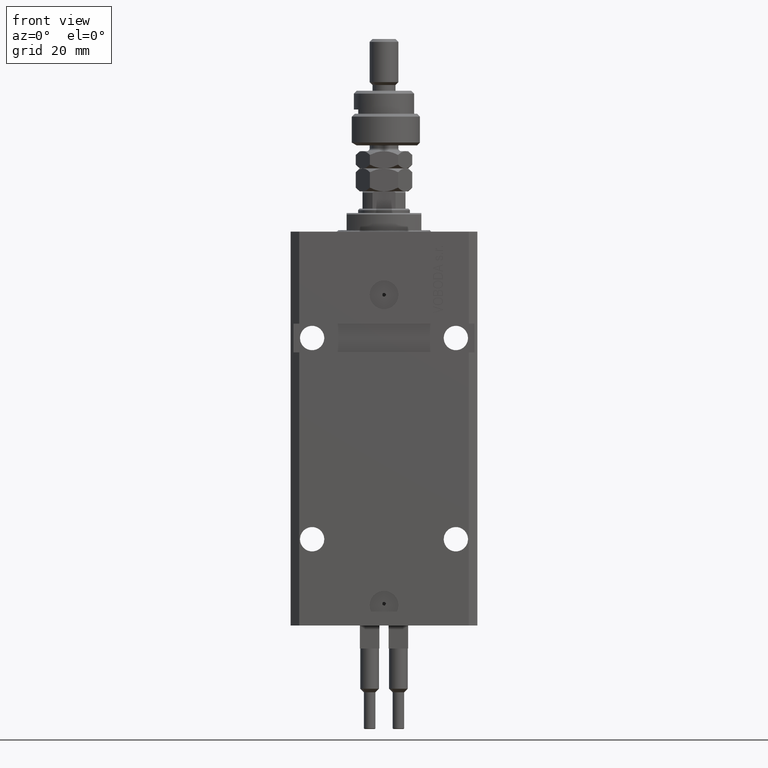
[diagram: clean part render]
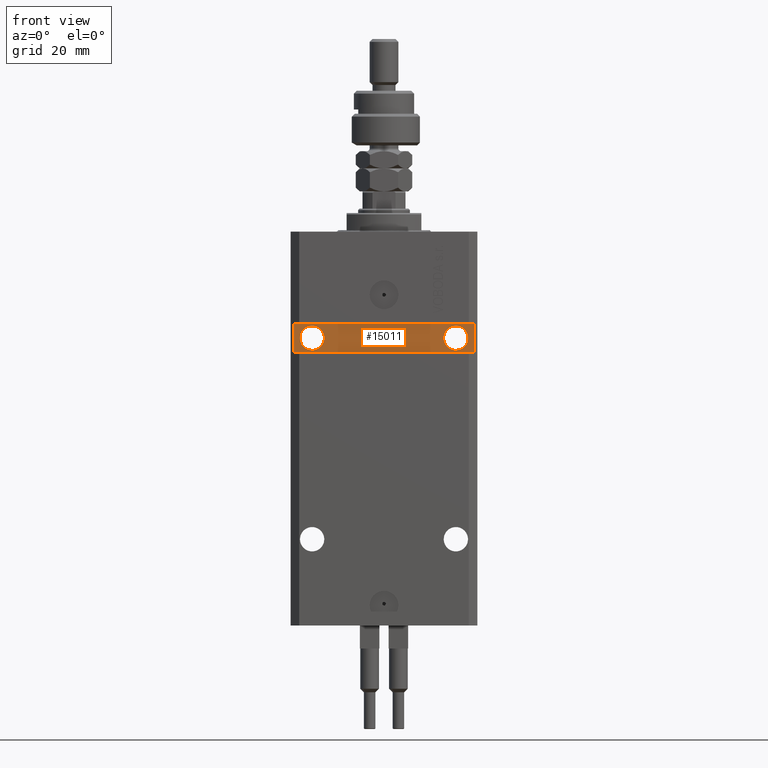
[diagram: same view with one face highlighted and labeled with its STEP entity id]
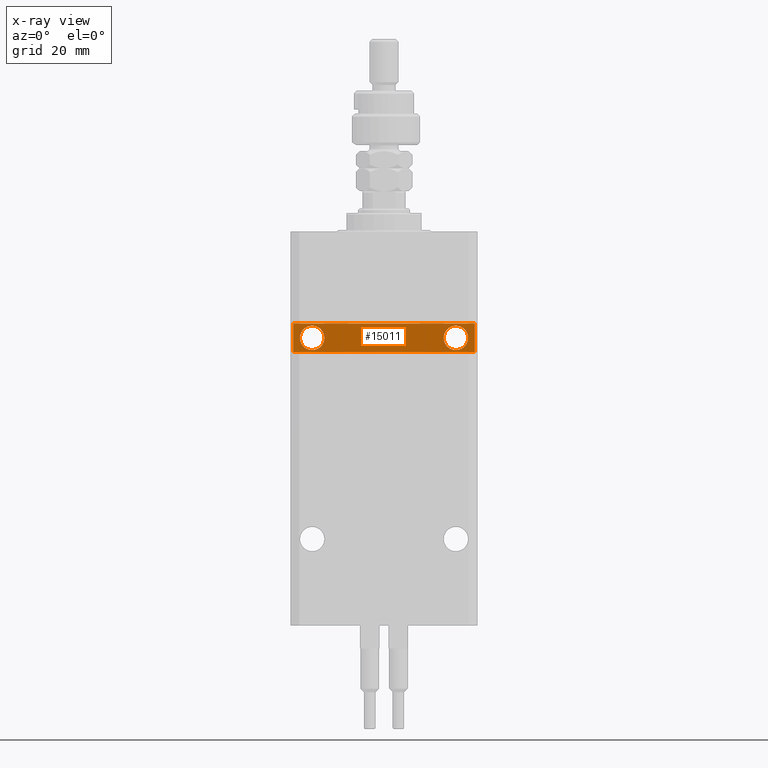
[diagram: x-ray of the same camera — body ghosted, the highlighted face saturated]
A machine part, front view. The second image highlights one B-rep face of the part: STEP entity #15011.
The next image is the same camera in x-ray: the body ghosted, the highlighted face saturated — about 0% of this face is hidden behind the body in this view.
In plain terms, the highlighted planar face has unit normal (0, -1, 0).
Its self-contained STEP definition (entity closure, byte-faithful):
#211 = AXIS2_PLACEMENT_3D ( 'NONE', #16313, #8533, #44377 ) ;
#243 = DIRECTION ( 'NONE',  ( 1.067522139062765303E-16, -1.000000000000000000, 0.000000000000000000 ) ) ;
#286 = AXIS2_PLACEMENT_3D ( 'NONE', #24743, #12796, #37225 ) ;
#619 = EDGE_CURVE ( 'NONE', #4576, #42649, #19989, .T. ) ;
#1580 = CARTESIAN_POINT ( 'NONE',  ( -29.24999999999377920, -20.49999999999950262, -37.00000000000000000 ) ) ;
#2236 = ORIENTED_EDGE ( 'NONE', *, *, #47660, .F. ) ;
#2754 = CIRCLE ( 'NONE', #211, 4.249999999989050536 ) ;
#4576 = VERTEX_POINT ( 'NONE', #16707 ) ;
#5049 = DIRECTION ( 'NONE',  ( -1.000000000000000000, -1.067522139062765303E-16, 1.067522139062765303E-16 ) ) ;
#6627 = CARTESIAN_POINT ( 'NONE',  ( -20.75000000000621014, -20.49999999999950262, -37.00000000000000000 ) ) ;
#8039 = FACE_OUTER_BOUND ( 'NONE', #9274, .T. ) ;
#8095 = CIRCLE ( 'NONE', #27966, 4.249999999989050536 ) ;
#8533 = DIRECTION ( 'NONE',  ( 1.394545208792185644E-16, -1.000000000000000000, 1.232595164407830946E-32 ) ) ;
#8927 = ORIENTED_EDGE ( 'NONE', *, *, #43400, .F. ) ;
#8936 = LINE ( 'NONE', #25033, #41535 ) ;
#9274 = EDGE_LOOP ( 'NONE', ( #26614, #2236, #11559, #38379 ) ) ;
#11559 = ORIENTED_EDGE ( 'NONE', *, *, #619, .T. ) ;
#11955 = DIRECTION ( 'NONE',  ( 1.000000000000000000, 1.067522139062765303E-16, 1.067522139062765303E-16 ) ) ;
#12191 = FACE_BOUND ( 'NONE', #26942, .T. ) ;
#12796 = DIRECTION ( 'NONE',  ( 1.101411730780568590E-16, -1.000000000000000000, 0.000000000000000000 ) ) ;
#13363 = EDGE_CURVE ( 'NONE', #17759, #49377, #8936, .T. ) ;
#13821 = CARTESIAN_POINT ( 'NONE',  ( 31.49999999999651124, -20.49999999999949196, -32.00000000000000711 ) ) ;
#13965 = DIRECTION ( 'NONE',  ( 0.000000000000000000, 0.000000000000000000, 1.000000000000000000 ) ) ;
#15011 = ADVANCED_FACE ( 'NONE', ( #44659, #12191, #8039 ), #23876, .T. ) ;
#15118 = DIRECTION ( 'NONE',  ( 1.101411730780568590E-16, -1.000000000000000000, 0.000000000000000000 ) ) ;
#16081 = VECTOR ( 'NONE', #13965, 1000.000000000000000 ) ;
#16313 = CARTESIAN_POINT ( 'NONE',  ( 25.00000000000000711, -20.49999999999949551, -36.99999999999999289 ) ) ;
#16707 = CARTESIAN_POINT ( 'NONE',  ( -31.49999999999650413, -20.49999999999949907, -41.99999999999999289 ) ) ;
#16827 = AXIS2_PLACEMENT_3D ( 'NONE', #39783, #15118, #51198 ) ;
#17759 = VERTEX_POINT ( 'NONE', #13821 ) ;
#18293 = CARTESIAN_POINT ( 'NONE',  ( 20.75000000001095657, -20.49999999999949551, -36.99999999999999289 ) ) ;
#18999 = EDGE_CURVE ( 'NONE', #25274, #31540, #2754, .T. ) ;
#19142 = LINE ( 'NONE', #50312, #16081 ) ;
#19989 = LINE ( 'NONE', #23628, #35348 ) ;
#20715 = EDGE_CURVE ( 'NONE', #44573, #38340, #36830, .T. ) ;
#23628 = CARTESIAN_POINT ( 'NONE',  ( -32.49999999999650413, -20.49999999999949907, -41.99999999999999289 ) ) ;
#23876 = PLANE ( 'NONE',  #49867 ) ;
#24386 = VECTOR ( 'NONE', #44783, 1000.000000000000000 ) ;
#24743 = CARTESIAN_POINT ( 'NONE',  ( -24.99999999999999289, -20.49999999999950262, -37.00000000000000000 ) ) ;
#24758 = CARTESIAN_POINT ( 'NONE',  ( 29.24999999998905764, -20.49999999999949551, -36.99999999999999289 ) ) ;
#25033 = CARTESIAN_POINT ( 'NONE',  ( 32.49999999999650413, -20.49999999999949196, -32.00000000000000711 ) ) ;
#25274 = VERTEX_POINT ( 'NONE', #18293 ) ;
#25401 = EDGE_LOOP ( 'NONE', ( #26157, #32054 ) ) ;
#26157 = ORIENTED_EDGE ( 'NONE', *, *, #27891, .F. ) ;
#26303 = DIRECTION ( 'NONE',  ( 1.000000000000000000, 0.000000000000000000, 0.000000000000000000 ) ) ;
#26614 = ORIENTED_EDGE ( 'NONE', *, *, #13363, .T. ) ;
#26942 = EDGE_LOOP ( 'NONE', ( #8927, #44570 ) ) ;
#27785 = DIRECTION ( 'NONE',  ( 1.000000000000000000, 1.067522139062765303E-16, 0.000000000000000000 ) ) ;
#27891 = EDGE_CURVE ( 'NONE', #31540, #25274, #8095, .T. ) ;
#27966 = AXIS2_PLACEMENT_3D ( 'NONE', #46041, #29940, #26303 ) ;
#28590 = CARTESIAN_POINT ( 'NONE',  ( 31.49999999999650413, -20.49999999999949196, -41.99999999999998579 ) ) ;
#28929 = CARTESIAN_POINT ( 'NONE',  ( 31.49999999999651124, -20.49999999999949551, -137.0000000000000000 ) ) ;
#29940 = DIRECTION ( 'NONE',  ( 1.394545208792185644E-16, -1.000000000000000000, 1.232595164407830946E-32 ) ) ;
#31540 = VERTEX_POINT ( 'NONE', #24758 ) ;
#31931 = CARTESIAN_POINT ( 'NONE',  ( 2.166708070385810581E-15, -20.49999999999949907, 0.000000000000000000 ) ) ;
#32054 = ORIENTED_EDGE ( 'NONE', *, *, #18999, .F. ) ;
#35348 = VECTOR ( 'NONE', #11955, 1000.000000000000000 ) ;
#36830 = CIRCLE ( 'NONE', #286, 4.249999999993782751 ) ;
#37225 = DIRECTION ( 'NONE',  ( 1.000000000000000000, 0.000000000000000000, 0.000000000000000000 ) ) ;
#38340 = VERTEX_POINT ( 'NONE', #6627 ) ;
#38379 = ORIENTED_EDGE ( 'NONE', *, *, #48108, .F. ) ;
#38428 = CIRCLE ( 'NONE', #16827, 4.249999999993782751 ) ;
#39783 = CARTESIAN_POINT ( 'NONE',  ( -24.99999999999999289, -20.49999999999950262, -37.00000000000000000 ) ) ;
#41535 = VECTOR ( 'NONE', #5049, 1000.000000000000000 ) ;
#42649 = VERTEX_POINT ( 'NONE', #28590 ) ;
#43400 = EDGE_CURVE ( 'NONE', #38340, #44573, #38428, .T. ) ;
#44377 = DIRECTION ( 'NONE',  ( 1.000000000000000000, 0.000000000000000000, 0.000000000000000000 ) ) ;
#44570 = ORIENTED_EDGE ( 'NONE', *, *, #20715, .F. ) ;
#44573 = VERTEX_POINT ( 'NONE', #1580 ) ;
#44659 = FACE_BOUND ( 'NONE', #25401, .T. ) ;
#44783 = DIRECTION ( 'NONE',  ( 0.000000000000000000, 0.000000000000000000, -1.000000000000000000 ) ) ;
#46041 = CARTESIAN_POINT ( 'NONE',  ( 25.00000000000000711, -20.49999999999949551, -36.99999999999999289 ) ) ;
#47660 = EDGE_CURVE ( 'NONE', #4576, #49377, #19142, .T. ) ;
#48108 = EDGE_CURVE ( 'NONE', #17759, #42649, #48662, .T. ) ;
#48662 = LINE ( 'NONE', #28929, #24386 ) ;
#48873 = CARTESIAN_POINT ( 'NONE',  ( -31.49999999999650413, -20.49999999999950262, -32.00000000000000000 ) ) ;
#49377 = VERTEX_POINT ( 'NONE', #48873 ) ;
#49867 = AXIS2_PLACEMENT_3D ( 'NONE', #31931, #243, #27785 ) ;
#50312 = CARTESIAN_POINT ( 'NONE',  ( -31.49999999999650413, -20.49999999999950262, -137.0000000000000000 ) ) ;
#51198 = DIRECTION ( 'NONE',  ( 1.000000000000000000, 0.000000000000000000, 0.000000000000000000 ) ) ;